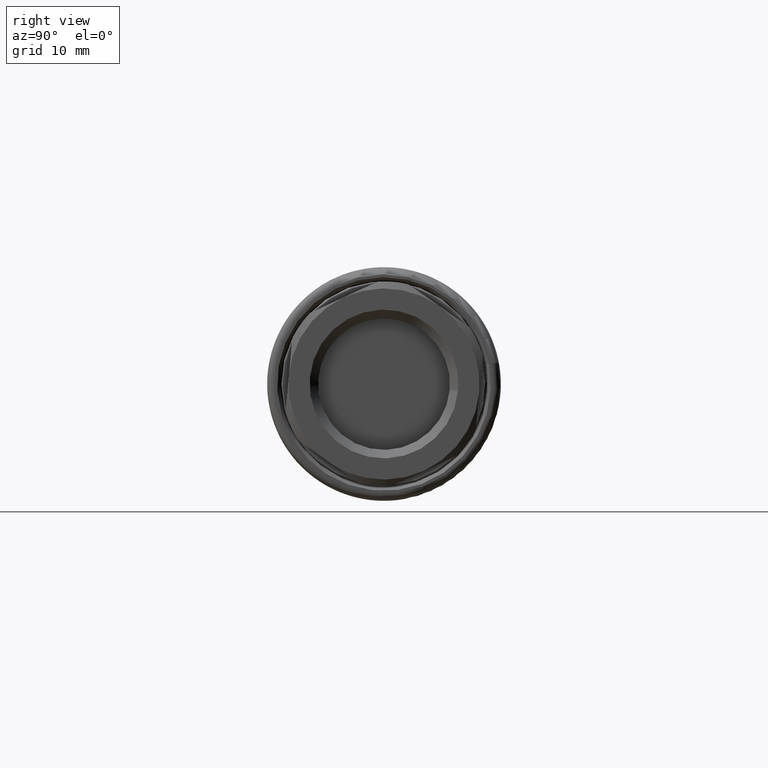
[diagram: clean part render]
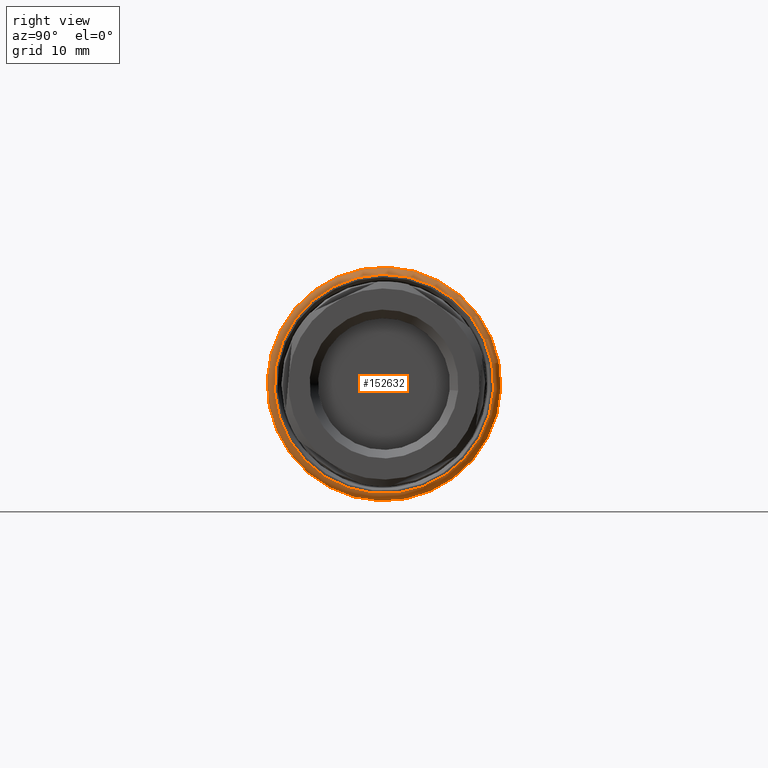
[diagram: same view with one face highlighted and labeled with its STEP entity id]
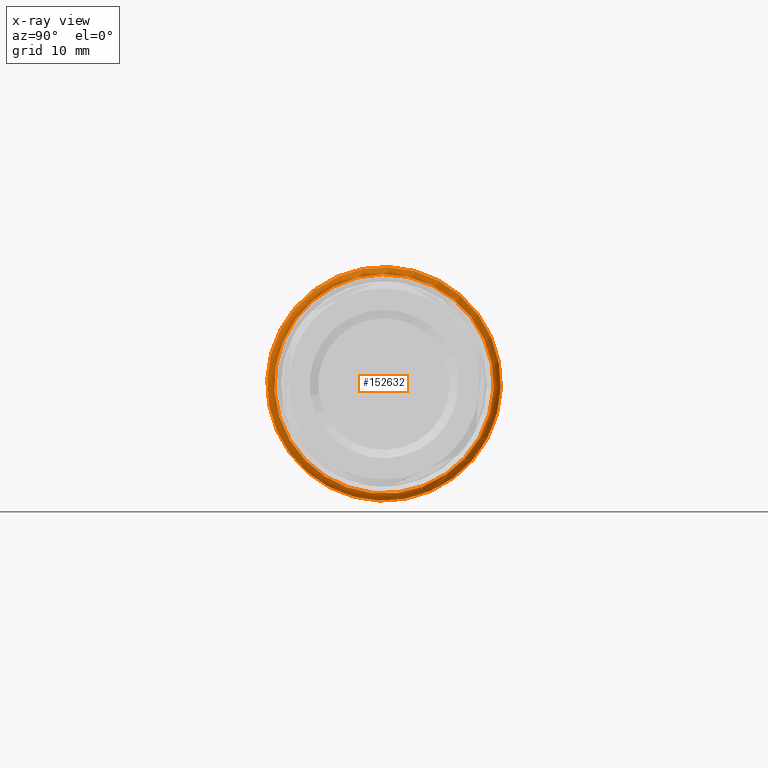
[diagram: x-ray of the same camera — body ghosted, the highlighted face saturated]
A machine part, right view. The second image highlights one B-rep face of the part: STEP entity #152632.
The next image is the same camera in x-ray: the body ghosted, the highlighted face saturated — about 0% of this face is hidden behind the body in this view.
In plain terms, the highlighted toroidal blend (fillet) surface has major radius 15.5 mm and minor (blend) radius 1 mm.
Its self-contained STEP definition (entity closure, byte-faithful):
#152216=CARTESIAN_POINT('',(51.800000000000004,16.216006570655985,3.048135643379789));
#152217=VERTEX_POINT('',#152216);
#152218=CARTESIAN_POINT('',(51.800000000000004,0.0,0.0));
#152219=DIRECTION('',(1.0,0.0,0.0));
#152220=DIRECTION('',(0.0,-0.982788277009453,-0.184735493538169));
#152221=AXIS2_PLACEMENT_3D('',#152218,#152219,#152220);
#152222=CIRCLE('',#152221,16.500000000000011);
#152223=EDGE_CURVE('',#152217,#152217,#152222,.T.);
#152586=CARTESIAN_POINT('',(52.800000000000004,15.233218293646528,2.863400149841616));
#152587=VERTEX_POINT('',#152586);
#152588=CARTESIAN_POINT('',(52.800000000000004,0.0,0.0));
#152589=DIRECTION('',(-1.0,0.0,0.0));
#152590=DIRECTION('',(0.0,-0.982788277009453,-0.184735493538169));
#152591=AXIS2_PLACEMENT_3D('',#152588,#152589,#152590);
#152592=CIRCLE('',#152591,15.500000000000007);
#152593=EDGE_CURVE('',#152587,#152587,#152592,.T.);
#152621=CARTESIAN_POINT('',(51.800000000000004,0.0,0.0));
#152622=DIRECTION('',(1.0,0.0,0.0));
#152623=DIRECTION('',(0.0,0.184735493538169,-0.982788277009453));
#152624=AXIS2_PLACEMENT_3D('',#152621,#152622,#152623);
#152625=TOROIDAL_SURFACE('',#152624,15.500000000000007,1.0);
#152626=ORIENTED_EDGE('',*,*,#152223,.T.);
#152627=EDGE_LOOP('',(#152626));
#152628=FACE_OUTER_BOUND('',#152627,.T.);
#152629=ORIENTED_EDGE('',*,*,#152593,.T.);
#152630=EDGE_LOOP('',(#152629));
#152631=FACE_BOUND('',#152630,.T.);
#152632=ADVANCED_FACE('',(#152628,#152631),#152625,.T.);